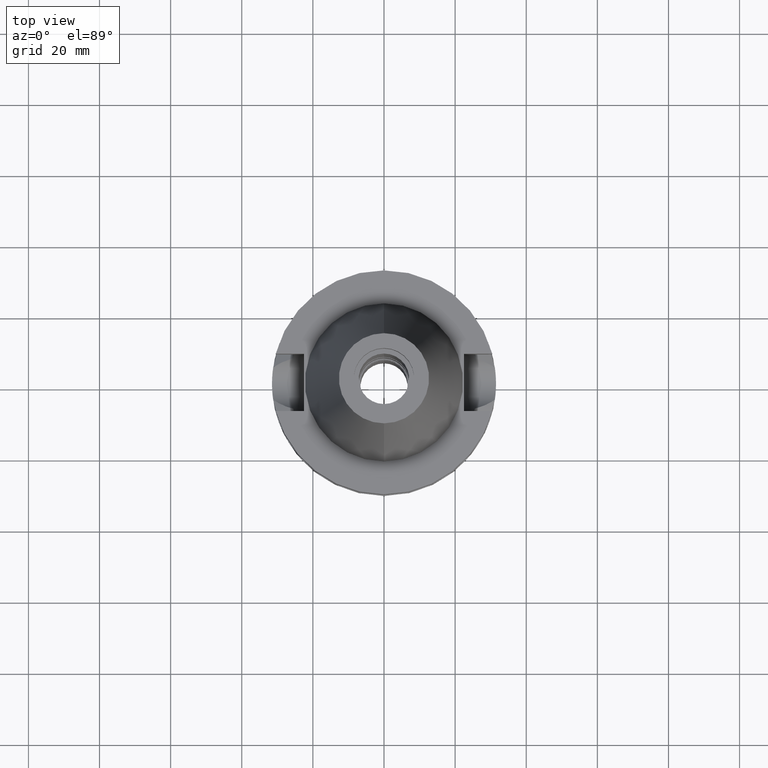
[diagram: clean part render]
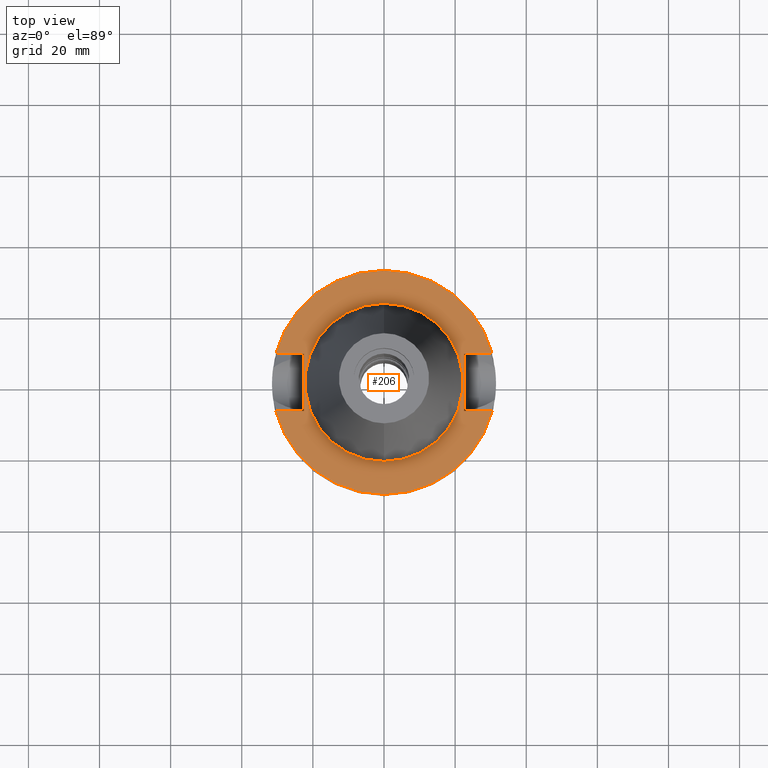
[diagram: same view with one face highlighted and labeled with its STEP entity id]
A machine part, top view. The second image highlights one B-rep face of the part: STEP entity #206.
In plain terms, the highlighted planar face has unit normal (0, 0, -1).
Its self-contained STEP definition (entity closure, byte-faithful):
#14 = VECTOR ( 'NONE', #2048, 1000.000000000000000 ) ;
#19 = EDGE_CURVE ( 'NONE', #1053, #1103, #1320, .T. ) ;
#31 = DIRECTION ( 'NONE',  ( 0.0000000000000000000, 1.000000000000000000, 0.0000000000000000000 ) ) ;
#88 = CARTESIAN_POINT ( 'NONE',  ( -22.50000000000000000, 8.050000000000000711, -1.000000000000000000 ) ) ;
#117 = LINE ( 'NONE', #2946, #2003 ) ;
#168 = DIRECTION ( 'NONE',  ( 0.0000000000000000000, -1.000000000000000000, 0.0000000000000000000 ) ) ;
#172 = VECTOR ( 'NONE', #168, 1000.000000000000000 ) ;
#206 = ADVANCED_FACE ( 'NONE', ( #280, #2684 ), #1280, .F. ) ;
#246 = CARTESIAN_POINT ( 'NONE',  ( 22.50000000000000000, 8.050000000000000711, -1.000000000000000000 ) ) ;
#280 = FACE_OUTER_BOUND ( 'NONE', #613, .T. ) ;
#311 = AXIS2_PLACEMENT_3D ( 'NONE', #726, #978, #1978 ) ;
#346 = DIRECTION ( 'NONE',  ( 0.0000000000000000000, 0.0000000000000000000, 1.000000000000000000 ) ) ;
#427 = LINE ( 'NONE', #2318, #172 ) ;
#486 = ORIENTED_EDGE ( 'NONE', *, *, #2291, .F. ) ;
#531 = CARTESIAN_POINT ( 'NONE',  ( -30.45402272279000044, -8.050000000000000711, -1.000000000000000000 ) ) ;
#554 = CARTESIAN_POINT ( 'NONE',  ( -30.45402272279000044, 8.050000000000000711, -1.000000000000000000 ) ) ;
#594 = AXIS2_PLACEMENT_3D ( 'NONE', #1697, #757, #973 ) ;
#611 = ORIENTED_EDGE ( 'NONE', *, *, #19, .F. ) ;
#613 = EDGE_LOOP ( 'NONE', ( #998, #611, #1246, #2069, #992, #486, #1812, #1086 ) ) ;
#660 = CARTESIAN_POINT ( 'NONE',  ( 22.50000000000000000, -8.050000000000000711, -1.000000000000000000 ) ) ;
#687 = VECTOR ( 'NONE', #1730, 1000.000000000000000 ) ;
#693 = DIRECTION ( 'NONE',  ( 0.0000000000000000000, -1.000000000000000000, 0.0000000000000000000 ) ) ;
#705 = ORIENTED_EDGE ( 'NONE', *, *, #1563, .F. ) ;
#726 = CARTESIAN_POINT ( 'NONE',  ( 0.0000000000000000000, 0.0000000000000000000, -1.000000000000000000 ) ) ;
#744 = CARTESIAN_POINT ( 'NONE',  ( -22.50000000000000000, -8.050000000000000711, -1.000000000000000000 ) ) ;
#757 = DIRECTION ( 'NONE',  ( 0.0000000000000000000, 0.0000000000000000000, 1.000000000000000000 ) ) ;
#973 = DIRECTION ( 'NONE',  ( 0.0000000000000000000, 1.000000000000000000, 0.0000000000000000000 ) ) ;
#978 = DIRECTION ( 'NONE',  ( 0.0000000000000000000, 0.0000000000000000000, -1.000000000000000000 ) ) ;
#992 = ORIENTED_EDGE ( 'NONE', *, *, #1291, .T. ) ;
#996 = LINE ( 'NONE', #1990, #687 ) ;
#998 = ORIENTED_EDGE ( 'NONE', *, *, #2823, .F. ) ;
#1053 = VERTEX_POINT ( 'NONE', #1709 ) ;
#1062 = VERTEX_POINT ( 'NONE', #2671 ) ;
#1086 = ORIENTED_EDGE ( 'NONE', *, *, #2914, .F. ) ;
#1103 = VERTEX_POINT ( 'NONE', #531 ) ;
#1116 = CARTESIAN_POINT ( 'NONE',  ( 0.0000000000000000000, -22.22500000000000142, -1.000000000000000000 ) ) ;
#1144 = CARTESIAN_POINT ( 'NONE',  ( -22.50000000000000000, -8.050000000000000711, -1.000000000000000000 ) ) ;
#1246 = ORIENTED_EDGE ( 'NONE', *, *, #2691, .F. ) ;
#1280 = PLANE ( 'NONE',  #311 ) ;
#1291 = EDGE_CURVE ( 'NONE', #2384, #1062, #3023, .T. ) ;
#1308 = DIRECTION ( 'NONE',  ( 0.0000000000000000000, -1.000000000000000000, 0.0000000000000000000 ) ) ;
#1317 = DIRECTION ( 'NONE',  ( 1.000000000000000000, 3.550916904668000126E-14, 0.0000000000000000000 ) ) ;
#1320 = CIRCLE ( 'NONE', #2425, 31.50000000000000000 ) ;
#1357 = EDGE_CURVE ( 'NONE', #2635, #2300, #2956, .T. ) ;
#1421 = VERTEX_POINT ( 'NONE', #1144 ) ;
#1547 = CARTESIAN_POINT ( 'NONE',  ( 0.0000000000000000000, 0.0000000000000000000, -1.000000000000000000 ) ) ;
#1549 = AXIS2_PLACEMENT_3D ( 'NONE', #1948, #2873, #1657 ) ;
#1553 = ORIENTED_EDGE ( 'NONE', *, *, #1357, .F. ) ;
#1563 = EDGE_CURVE ( 'NONE', #2300, #2635, #1792, .T. ) ;
#1620 = CARTESIAN_POINT ( 'NONE',  ( 22.50000000000000000, -8.050000000000000711, -1.000000000000000000 ) ) ;
#1657 = DIRECTION ( 'NONE',  ( 0.0000000000000000000, 1.000000000000000000, 0.0000000000000000000 ) ) ;
#1697 = CARTESIAN_POINT ( 'NONE',  ( 0.0000000000000000000, 0.0000000000000000000, -1.000000000000000000 ) ) ;
#1709 = CARTESIAN_POINT ( 'NONE',  ( 30.45402272279000044, -8.050000000000000711, -1.000000000000000000 ) ) ;
#1730 = DIRECTION ( 'NONE',  ( 1.000000000000000000, -3.550916904668000126E-14, 0.0000000000000000000 ) ) ;
#1792 = CIRCLE ( 'NONE', #594, 22.22500000000000142 ) ;
#1812 = ORIENTED_EDGE ( 'NONE', *, *, #1969, .T. ) ;
#1816 = CARTESIAN_POINT ( 'NONE',  ( 0.0000000000000000000, 0.0000000000000000000, -1.000000000000000000 ) ) ;
#1873 = EDGE_LOOP ( 'NONE', ( #705, #1553 ) ) ;
#1901 = LINE ( 'NONE', #1620, #2910 ) ;
#1948 = CARTESIAN_POINT ( 'NONE',  ( 0.0000000000000000000, 0.0000000000000000000, -1.000000000000000000 ) ) ;
#1969 = EDGE_CURVE ( 'NONE', #3071, #2552, #117, .T. ) ;
#1978 = DIRECTION ( 'NONE',  ( 0.0000000000000000000, -1.000000000000000000, 0.0000000000000000000 ) ) ;
#1990 = CARTESIAN_POINT ( 'NONE',  ( -30.45402272279000044, -8.050000000000000711, -1.000000000000000000 ) ) ;
#2003 = VECTOR ( 'NONE', #1317, 1000.000000000000000 ) ;
#2048 = DIRECTION ( 'NONE',  ( 1.000000000000000000, -3.506251283225999947E-14, 0.0000000000000000000 ) ) ;
#2069 = ORIENTED_EDGE ( 'NONE', *, *, #2170, .F. ) ;
#2170 = EDGE_CURVE ( 'NONE', #2384, #2676, #427, .T. ) ;
#2190 = LINE ( 'NONE', #744, #2657 ) ;
#2291 = EDGE_CURVE ( 'NONE', #3071, #1062, #2906, .T. ) ;
#2300 = VERTEX_POINT ( 'NONE', #2359 ) ;
#2318 = CARTESIAN_POINT ( 'NONE',  ( 22.50000000000000000, 8.050000000000000711, -1.000000000000000000 ) ) ;
#2359 = CARTESIAN_POINT ( 'NONE',  ( 0.0000000000000000000, 22.22500000000000142, -1.000000000000000000 ) ) ;
#2384 = VERTEX_POINT ( 'NONE', #246 ) ;
#2389 = AXIS2_PLACEMENT_3D ( 'NONE', #1547, #346, #1308 ) ;
#2425 = AXIS2_PLACEMENT_3D ( 'NONE', #1816, #2628, #693 ) ;
#2549 = DIRECTION ( 'NONE',  ( 1.000000000000000000, 3.595582526110999949E-14, 0.0000000000000000000 ) ) ;
#2552 = VERTEX_POINT ( 'NONE', #88 ) ;
#2628 = DIRECTION ( 'NONE',  ( 0.0000000000000000000, 0.0000000000000000000, -1.000000000000000000 ) ) ;
#2635 = VERTEX_POINT ( 'NONE', #1116 ) ;
#2657 = VECTOR ( 'NONE', #31, 1000.000000000000000 ) ;
#2671 = CARTESIAN_POINT ( 'NONE',  ( 30.45402272279000044, 8.050000000000000711, -1.000000000000000000 ) ) ;
#2676 = VERTEX_POINT ( 'NONE', #660 ) ;
#2684 = FACE_BOUND ( 'NONE', #1873, .T. ) ;
#2691 = EDGE_CURVE ( 'NONE', #2676, #1053, #1901, .T. ) ;
#2823 = EDGE_CURVE ( 'NONE', #1103, #1421, #996, .T. ) ;
#2873 = DIRECTION ( 'NONE',  ( 0.0000000000000000000, 0.0000000000000000000, -1.000000000000000000 ) ) ;
#2906 = CIRCLE ( 'NONE', #1549, 31.50000000000000000 ) ;
#2910 = VECTOR ( 'NONE', #2549, 1000.000000000000000 ) ;
#2914 = EDGE_CURVE ( 'NONE', #1421, #2552, #2190, .T. ) ;
#2946 = CARTESIAN_POINT ( 'NONE',  ( -30.45402272279000044, 8.050000000000000711, -1.000000000000000000 ) ) ;
#2956 = CIRCLE ( 'NONE', #2389, 22.22500000000000142 ) ;
#2992 = CARTESIAN_POINT ( 'NONE',  ( 22.50000000000000000, 8.050000000000000711, -1.000000000000000000 ) ) ;
#3023 = LINE ( 'NONE', #2992, #14 ) ;
#3071 = VERTEX_POINT ( 'NONE', #554 ) ;